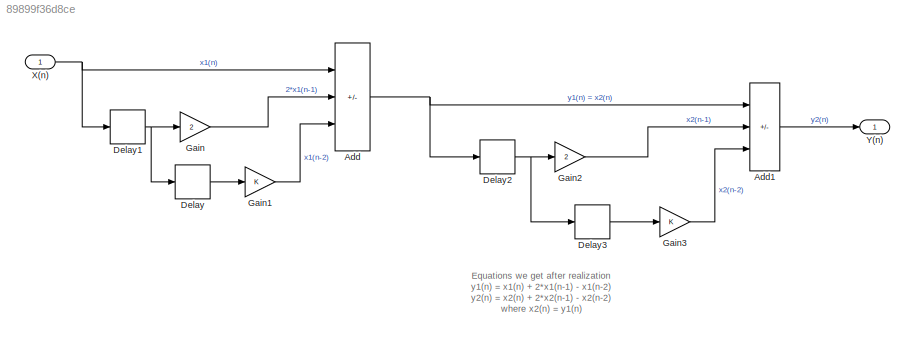
MODEL slx_89899f36d8ce
KIND model
CONFIG AbsTol = auto
CONFIG EnableMultiTasking = off
CONFIG FixedStep = auto
CONFIG MaxStep = auto
CONFIG MinStep = auto
CONFIG RelTol = 1e-3
CONFIG SampleTimeConstraint = Unconstrained
CONFIG Solver = VariableStepAuto
CONFIG SolverName = VariableStepAuto
CONFIG StartTime = 0.0
CONFIG StopTime = 10.0
BLOCK [Sum] Add
  IconShape = rectangular
  Inputs = ++-
  Ports = [3, 1]
BLOCK [Sum] Add1
  IconShape = rectangular
  Inputs = ++-
  Ports = [3, 1]
BLOCK [Delay] Delay
  DelayLength = 1
  InputPortMap = u0
  Ports = [1, 1]
BLOCK [Delay] Delay1
  DelayLength = 1
  InputPortMap = u0
  Ports = [1, 1]
BLOCK [Delay] Delay2
  DelayLength = 1
  InputPortMap = u0
  Ports = [1, 1]
BLOCK [Delay] Delay3
  DelayLength = 1
  InputPortMap = u0
  Ports = [1, 1]
BLOCK [Gain] Gain
  Gain = 2
BLOCK [Gain] Gain1
BLOCK [Gain] Gain2
  Gain = 2
BLOCK [Gain] Gain3
BLOCK [Inport] X(n)
BLOCK [Outport] Y(n)
ANNOTATION (root): Equations we get after realization y1(n) = x1(n) + 2*x1(n-1) - x1(n-2) y2(n) = x2(n) + 2*x2(n-1) - x2(n-2) where x2(n) = y1(n)
LINE Add1:1 -> Y(n):1
NET Add:1 -> Add1:1, Delay2:1
NET Delay1:1 -> Delay:1, Gain:1
NET Delay2:1 -> Delay3:1, Gain2:1
LINE Delay3:1 -> Gain3:1
LINE Delay:1 -> Gain1:1
LINE Gain1:1 -> Add:3
LINE Gain2:1 -> Add1:2
LINE Gain3:1 -> Add1:3
LINE Gain:1 -> Add:2
NET X(n):1 -> Add:1, Delay1:1
note: NET lines group one-source signal fan-out (src -> all destinations, sorted); 1:1 wires keep LINE
